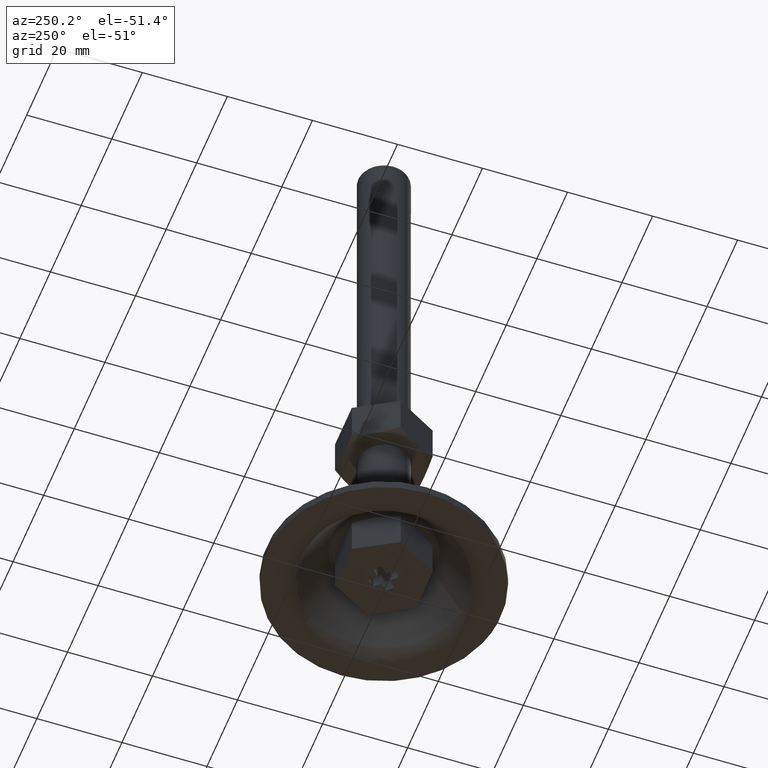
[diagram: clean part render]
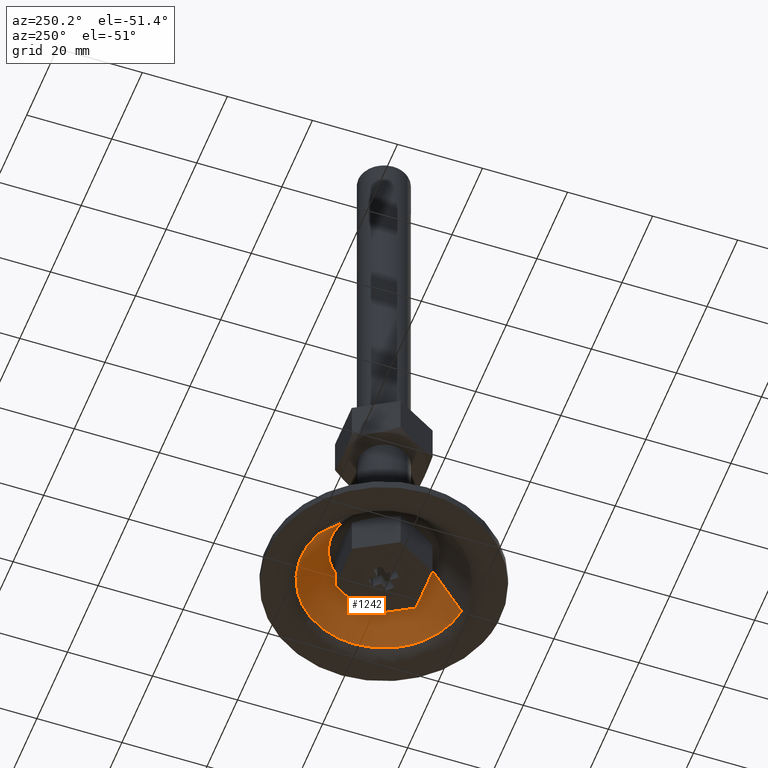
[diagram: same view with one face highlighted and labeled with its STEP entity id]
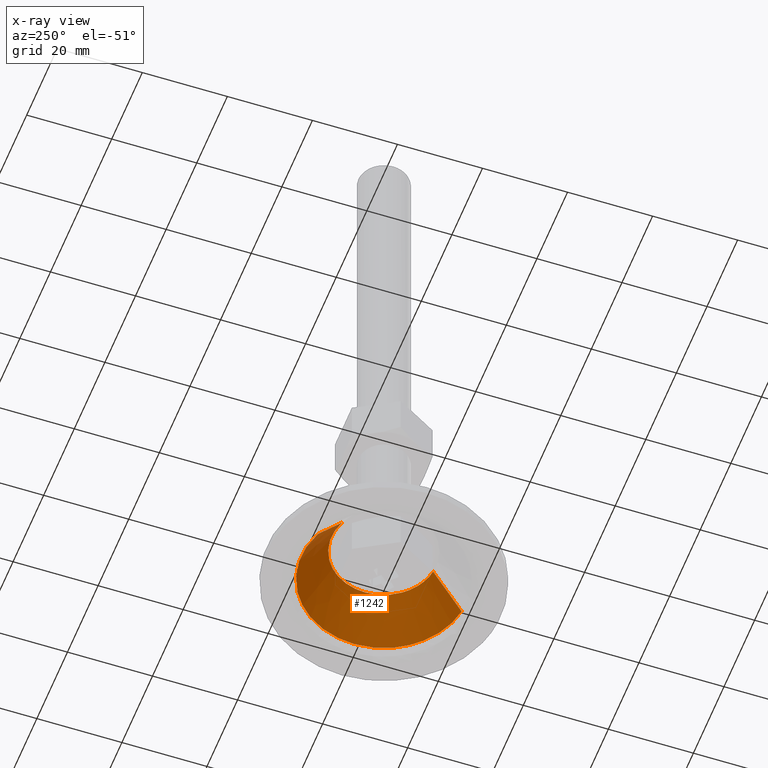
[diagram: x-ray of the same camera — body ghosted, the highlighted face saturated]
A machine part, auxiliary view. The second image highlights one B-rep face of the part: STEP entity #1242.
The next image is the same camera in x-ray: the body ghosted, the highlighted face saturated — about 0% of this face is hidden behind the body in this view.
In plain terms, the highlighted face is a freeform B-spline surface patch.
Its self-contained STEP definition (entity closure, byte-faithful):
#1015=CARTESIAN_POINT('',(1.707165792024285,-12.206836241756880,11.583057334879470));
#1016=VERTEX_POINT('',#1015);
#1034=CARTESIAN_POINT('',(2.692756184432366,-19.254154424116109,1.667770660268167));
#1035=VERTEX_POINT('',#1034);
#1036=CARTESIAN_POINT('',(1.707165792024285,-12.206836241756880,11.583057334879470));
#1037=CARTESIAN_POINT('',(2.692756184432366,-19.254154424116109,1.667770660268167));
#1038=QUASI_UNIFORM_CURVE('',1,(#1036,#1037),.UNSPECIFIED.,.F.,.U.);
#1039=EDGE_CURVE('',#1016,#1035,#1038,.T.);
#1058=CARTESIAN_POINT('',(-7.125347513680286,18.088748471449868,1.667770660361272));
#1059=VERTEX_POINT('',#1058);
#1073=CARTESIAN_POINT('',(-4.517360168297516,11.467986884556520,11.583057334880410));
#1074=VERTEX_POINT('',#1073);
#1075=CARTESIAN_POINT('',(-4.517360168297516,11.467986884556520,11.583057334880410));
#1076=CARTESIAN_POINT('',(-7.125347513680286,18.088748471449868,1.667770660361272));
#1077=QUASI_UNIFORM_CURVE('',1,(#1075,#1076),.UNSPECIFIED.,.F.,.U.);
#1078=EDGE_CURVE('',#1074,#1059,#1077,.T.);
#1096=CARTESIAN_POINT('',(-4.452160484302032,11.302467844633149,11.830939502253161));
#1097=CARTESIAN_POINT('',(6.850307360331120,15.754628328935192,11.830939502253162));
#1098=CARTESIAN_POINT('',(11.302467844633149,4.452160484302032,11.830939502253161));
#1099=CARTESIAN_POINT('',(15.754628328935192,-6.850307360331120,11.830939502253162));
#1100=CARTESIAN_POINT('',(4.452160484302032,-11.302467844633149,11.830939502253161));
#1101=CARTESIAN_POINT('',(3.110560954422337,-11.830937953532846,11.830939502253166));
#1102=CARTESIAN_POINT('',(1.682526031810816,-12.030653286884542,11.830939502253161));
#1103=CARTESIAN_POINT('',(-7.192177189951445,18.258405488515091,1.413691437231607));
#1104=CARTESIAN_POINT('',(11.066228298563647,25.450582678466532,1.413691437231607));
#1105=CARTESIAN_POINT('',(18.258405488515091,7.192177189951445,1.413691437231607));
#1106=CARTESIAN_POINT('',(25.450582678466532,-11.066228298563647,1.413691437231607));
#1107=CARTESIAN_POINT('',(7.192177189951445,-18.258405488515091,1.413691437231607));
#1108=CARTESIAN_POINT('',(5.024909956240527,-19.112114755330840,1.413691437231607));
#1109=CARTESIAN_POINT('',(2.718011938284016,-19.434741953986464,1.413691437231607));
#1117=(BOUNDED_SURFACE()B_SPLINE_SURFACE(2,1,((#1096,#1103),(#1097,#1104),(#1098,#1105),(#1099,#1106),(#1100,#1107),(#1101,#1108),(#1102,#1109)),.UNSPECIFIED.,.F.,.F.,.U.)B_SPLINE_SURFACE_WITH_KNOTS((3,2,2,3),(2,2),(0.0,32.513913928144653,65.027827856289306,70.230054084792471),(0.0,12.822317158025960),.UNSPECIFIED.)GEOMETRIC_REPRESENTATION_ITEM()RATIONAL_B_SPLINE_SURFACE(((1.0,1.0),(0.707106781186548,0.707106781186548),(1.0,1.0),(0.707106781186548,0.707106781186548),(1.0,1.0),(0.953137084989848,0.953137084989848),(0.921270302782944,0.921270302782944)))REPRESENTATION_ITEM('')SURFACE());
#1118=CARTESIAN_POINT('',(6.662666292709861,-10.369674244572350,11.583057335328199));
#1119=VERTEX_POINT('',#1118);
#1120=CARTESIAN_POINT('',(6.662666292709861,-10.369674244572348,11.583057335328201));
#1121=CARTESIAN_POINT('',(4.386542799755877,-11.832116643409512,11.583057335015008));
#1122=CARTESIAN_POINT('',(1.707165792024286,-12.206836241756882,11.583057334879463));
#1130=(BOUNDED_CURVE()B_SPLINE_CURVE(2,(#1120,#1121,#1122),.UNSPECIFIED.,.F.,.U.)B_SPLINE_CURVE_WITH_KNOTS((3,3),(0.657460173955583,0.726086221376566),.UNSPECIFIED.)CURVE()GEOMETRIC_REPRESENTATION_ITEM()RATIONAL_B_SPLINE_CURVE((0.863428933516200,0.884307425352507,0.949326419109647))REPRESENTATION_ITEM(''));
#1131=EDGE_CURVE('',#1119,#1016,#1130,.T.);
#1132=ORIENTED_EDGE('',*,*,#1131,.F.);
#1133=CARTESIAN_POINT('',(12.325634509994600,0.0,11.583057334909320));
#1134=VERTEX_POINT('',#1133);
#1135=CARTESIAN_POINT('',(12.325634509994600,0.0,11.583057334909320));
#1136=CARTESIAN_POINT('',(12.325634509994597,-6.731134926501369,11.583057334909320));
#1137=CARTESIAN_POINT('',(6.662666292709861,-10.369674244572348,11.583057335328203));
#1145=(BOUNDED_CURVE()B_SPLINE_CURVE(2,(#1135,#1136,#1137),.UNSPECIFIED.,.F.,.U.)B_SPLINE_CURVE_WITH_KNOTS((3,3),(0.500000000000000,0.657460173955584),.UNSPECIFIED.)CURVE()GEOMETRIC_REPRESENTATION_ITEM()RATIONAL_B_SPLINE_CURVE((1.0,0.815523931260892,0.863428933516201))REPRESENTATION_ITEM(''));
#1146=EDGE_CURVE('',#1134,#1119,#1145,.T.);
#1147=ORIENTED_EDGE('',*,*,#1146,.F.);
#1148=CARTESIAN_POINT('',(9.971647784804500,7.244826189975726,11.583057335294541));
#1149=VERTEX_POINT('',#1148);
#1150=CARTESIAN_POINT('',(9.971647784804500,7.244826189975726,11.583057335294544));
#1151=CARTESIAN_POINT('',(12.325634509994599,4.004841420887461,11.583057334909315));
#1152=CARTESIAN_POINT('',(12.325634509994600,0.0,11.583057334909320));
#1160=(BOUNDED_CURVE()B_SPLINE_CURVE(2,(#1150,#1151,#1152),.UNSPECIFIED.,.F.,.U.)B_SPLINE_CURVE_WITH_KNOTS((3,3),(0.398750340999244,0.500000000000000),.UNSPECIFIED.)CURVE()GEOMETRIC_REPRESENTATION_ITEM()RATIONAL_B_SPLINE_CURVE((0.858840265006023,0.881378645886016,1.0))REPRESENTATION_ITEM(''));
#1161=EDGE_CURVE('',#1149,#1134,#1160,.T.);
#1162=ORIENTED_EDGE('',*,*,#1161,.F.);
#1163=CARTESIAN_POINT('',(-4.517360168297516,11.467986884556517,11.583057334880415));
#1164=CARTESIAN_POINT('',(-2.340094828947744,12.325634509994600,11.583057334909316));
#1165=CARTESIAN_POINT('',(0.0,12.325634509994600,11.583057334909320));
#1166=CARTESIAN_POINT('',(6.280224463983755,12.325634509994597,11.583057334909320));
#1167=CARTESIAN_POINT('',(9.971647784804500,7.244826189975726,11.583057335294544));
#1175=(BOUNDED_CURVE()B_SPLINE_CURVE(2,(#1163,#1164,#1165,#1166,#1167),.UNSPECIFIED.,.F.,.U.)B_SPLINE_CURVE_WITH_KNOTS((3,2,3),(0.187769642886547,0.250000000000000,0.398750340999244),.UNSPECIFIED.)CURVE()GEOMETRIC_REPRESENTATION_ITEM()RATIONAL_B_SPLINE_CURVE((0.890481630691914,0.927092601588520,1.0,0.825728135300532,0.858840265006023))REPRESENTATION_ITEM(''));
#1176=EDGE_CURVE('',#1074,#1149,#1175,.T.);
#1177=ORIENTED_EDGE('',*,*,#1176,.F.);
#1178=ORIENTED_EDGE('',*,*,#1078,.T.);
#1179=CARTESIAN_POINT('',(15.583694968158021,11.624192427802100,1.667770660179412));
#1180=VERTEX_POINT('',#1179);
#1181=CARTESIAN_POINT('',(-7.125347513680286,18.088748471449872,1.667770660361272));
#1182=CARTESIAN_POINT('',(-3.691091311990497,19.441537965244699,1.667770660362671));
#1183=CARTESIAN_POINT('',(0.0,19.441537965244699,1.667770660362670));
#1184=CARTESIAN_POINT('',(9.752579241746215,19.441537965244702,1.667770660362670));
#1185=CARTESIAN_POINT('',(15.583694968158021,11.624192427802104,1.667770660179412));
#1193=(BOUNDED_CURVE()B_SPLINE_CURVE(2,(#1181,#1182,#1183,#1184,#1185),.UNSPECIFIED.,.F.,.U.)B_SPLINE_CURVE_WITH_KNOTS((3,2,3),(0.187769642892442,0.250000000000000,0.396843395504846),.UNSPECIFIED.)CURVE()GEOMETRIC_REPRESENTATION_ITEM()RATIONAL_B_SPLINE_CURVE((0.890481630698851,0.927092601595427,1.0,0.827962260916355,0.858025367928864))REPRESENTATION_ITEM(''));
#1194=EDGE_CURVE('',#1059,#1180,#1193,.T.);
#1195=ORIENTED_EDGE('',*,*,#1194,.T.);
#1196=CARTESIAN_POINT('',(19.441537965244699,0.0,1.667770660362670));
#1197=VERTEX_POINT('',#1196);
#1198=CARTESIAN_POINT('',(15.583694968158026,11.624192427802104,1.667770660179412));
#1199=CARTESIAN_POINT('',(19.441537965244709,6.452267678828034,1.667770660362670));
#1200=CARTESIAN_POINT('',(19.441537965244699,0.0,1.667770660362670));
#1208=(BOUNDED_CURVE()B_SPLINE_CURVE(2,(#1198,#1199,#1200),.UNSPECIFIED.,.F.,.U.)B_SPLINE_CURVE_WITH_KNOTS((3,3),(0.396843395504846,0.500000000000000),.UNSPECIFIED.)CURVE()GEOMETRIC_REPRESENTATION_ITEM()RATIONAL_B_SPLINE_CURVE((0.858025367928864,0.879144520270193,1.0))REPRESENTATION_ITEM(''));
#1209=EDGE_CURVE('',#1180,#1197,#1208,.T.);
#1210=ORIENTED_EDGE('',*,*,#1209,.T.);
#1211=CARTESIAN_POINT('',(13.345804960500271,-14.137287167878730,1.667770658329694));
#1212=VERTEX_POINT('',#1211);
#1213=CARTESIAN_POINT('',(19.441537965244699,0.0,1.667770660362670));
#1214=CARTESIAN_POINT('',(19.441537965244702,-8.382826440368486,1.667770660362670));
#1215=CARTESIAN_POINT('',(13.345804960500274,-14.137287167878732,1.667770658329694));
#1223=(BOUNDED_CURVE()B_SPLINE_CURVE(2,(#1213,#1214,#1215),.UNSPECIFIED.,.F.,.U.)B_SPLINE_CURVE_WITH_KNOTS((3,3),(0.500000000000000,0.629344514439536),.UNSPECIFIED.)CURVE()GEOMETRIC_REPRESENTATION_ITEM()RATIONAL_B_SPLINE_CURVE((1.0,0.848463475319765,0.853730296276488))REPRESENTATION_ITEM(''));
#1224=EDGE_CURVE('',#1197,#1212,#1223,.T.);
#1225=ORIENTED_EDGE('',*,*,#1224,.T.);
#1226=CARTESIAN_POINT('',(13.345804960500274,-14.137287167878732,1.667770658329694));
#1227=CARTESIAN_POINT('',(8.835511226987638,-18.395070131792334,1.667770659961587));
#1228=CARTESIAN_POINT('',(2.692756184432366,-19.254154424116113,1.667770660268167));
#1236=(BOUNDED_CURVE()B_SPLINE_CURVE(2,(#1226,#1227,#1228),.UNSPECIFIED.,.F.,.U.)B_SPLINE_CURVE_WITH_KNOTS((3,3),(0.629344514439535,0.726086221383752),.UNSPECIFIED.)CURVE()GEOMETRIC_REPRESENTATION_ITEM()RATIONAL_B_SPLINE_CURVE((0.853730296276488,0.857669553010573,0.949326419123264))REPRESENTATION_ITEM(''));
#1237=EDGE_CURVE('',#1212,#1035,#1236,.T.);
#1238=ORIENTED_EDGE('',*,*,#1237,.T.);
#1239=ORIENTED_EDGE('',*,*,#1039,.F.);
#1240=EDGE_LOOP('',(#1132,#1147,#1162,#1177,#1178,#1195,#1210,#1225,#1238,#1239));
#1241=FACE_OUTER_BOUND('',#1240,.T.);
#1242=ADVANCED_FACE('',(#1241),#1117,.F.);